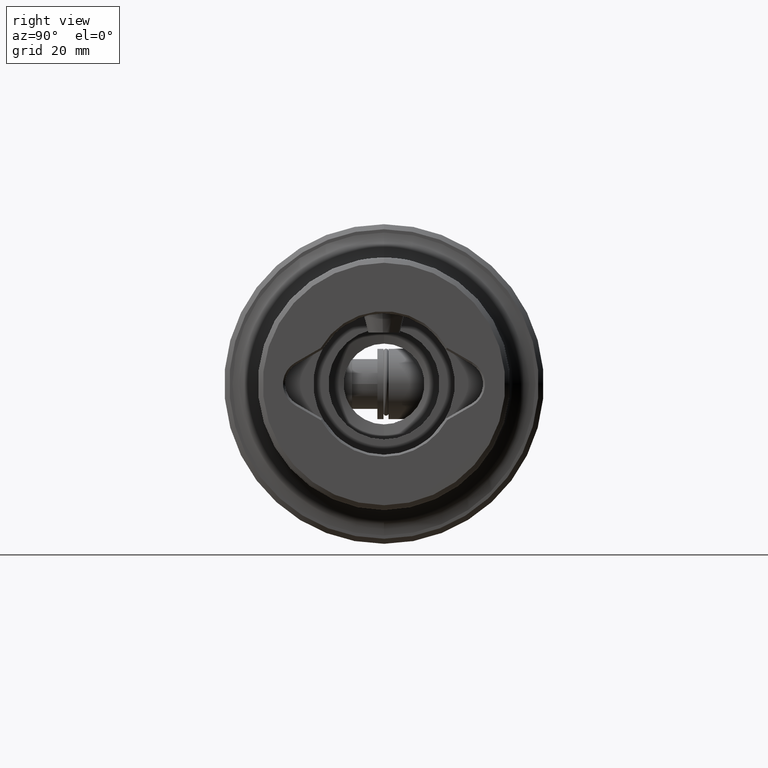
[diagram: clean part render]
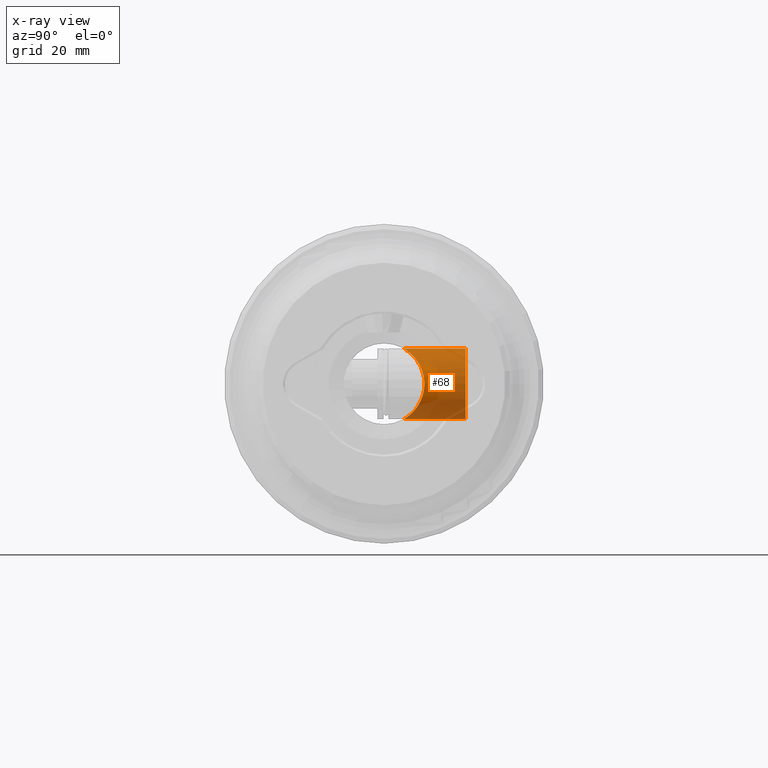
[diagram: x-ray — body ghosted, one internal face saturated and labeled with its STEP entity id]
A machine part, right view, then the same camera in x-ray: the body is ghosted and one INTERNAL B-rep face — a face not visible from any outside direction — is saturated and labeled: STEP entity #68.
In plain terms, the highlighted cylindrical surface (edge-blend (fillet) strip) has radius 7 mm, axis along (0, 1, 0).
Its self-contained STEP definition (entity closure, byte-faithful):
#68 = ADVANCED_FACE ( 'NONE', ( #2077 ), #2078, .F. ) ;
#106 = EDGE_CURVE ( 'NONE', #1848, #1788, #5243, .T. ) ;
#116 = EDGE_CURVE ( 'NONE', #1794, #1777, #365, .T. ) ;
#144 = EDGE_CURVE ( 'NONE', #1777, #1815, #403, .T. ) ;
#153 = EDGE_CURVE ( 'NONE', #1788, #1815, #2162, .T. ) ;
#156 = EDGE_CURVE ( 'NONE', #1848, #1794, #2163, .T. ) ;
#297 = AXIS2_PLACEMENT_3D ( 'NONE', #1117, #1118, #1119 ) ;
#365 = CIRCLE ( 'NONE', #366, 6.999999999999999100 ) ;
#366 = AXIS2_PLACEMENT_3D ( 'NONE', #2552, #2553, #2554 ) ;
#403 = CIRCLE ( 'NONE', #408, 6.999999999999999100 ) ;
#408 = AXIS2_PLACEMENT_3D ( 'NONE', #2657, #2658, #2659 ) ;
#419 = VECTOR ( 'NONE', #2769, 1000.000000000000000 ) ;
#422 = VECTOR ( 'NONE', #2826, 1000.000000000000000 ) ;
#513 = ORIENTED_EDGE ( 'NONE', *, *, #116, .T. ) ;
#514 = ORIENTED_EDGE ( 'NONE', *, *, #153, .F. ) ;
#515 = ORIENTED_EDGE ( 'NONE', *, *, #106, .F. ) ;
#516 = ORIENTED_EDGE ( 'NONE', *, *, #156, .T. ) ;
#518 = ORIENTED_EDGE ( 'NONE', *, *, #144, .T. ) ;
#1117 = CARTESIAN_POINT ( 'NONE',  ( 31.00000000000000000, -31.63500000000000500, 0.0000000000000000000 ) ) ;
#1118 = DIRECTION ( 'NONE',  ( -0.0000000000000000000, 1.000000000000000000, -0.0000000000000000000 ) ) ;
#1119 = DIRECTION ( 'NONE',  ( 0.0000000000000000000, 0.0000000000000000000, 1.000000000000000000 ) ) ;
#1777 = VERTEX_POINT ( 'NONE', #5006 ) ;
#1788 = VERTEX_POINT ( 'NONE', #5017 ) ;
#1794 = VERTEX_POINT ( 'NONE', #5023 ) ;
#1815 = VERTEX_POINT ( 'NONE', #5044 ) ;
#1848 = VERTEX_POINT ( 'NONE', #5077 ) ;
#1968 = EDGE_LOOP ( 'NONE', ( #514, #515, #516, #513, #518 ) ) ;
#2077 = FACE_OUTER_BOUND ( 'NONE', #1968, .T. ) ;
#2078 = CYLINDRICAL_SURFACE ( 'NONE', #297, 7.000000000000000000 ) ;
#2162 = LINE ( 'NONE', #2768, #419 ) ;
#2163 = LINE ( 'NONE', #2825, #422 ) ;
#2472 = CARTESIAN_POINT ( 'NONE',  ( 31.00000000000002800, 3.872983346207531600, 7.000000000000008000 ) ) ;
#2473 = CARTESIAN_POINT ( 'NONE',  ( 31.25150952951509000, 3.872983346207416600, 7.000000000000000900 ) ) ;
#2474 = CARTESIAN_POINT ( 'NONE',  ( 31.49764609907176900, 3.897609098806159400, 6.986512144310524700 ) ) ;
#2475 = CARTESIAN_POINT ( 'NONE',  ( 31.98074286846647900, 3.988177731900007600, 6.935210667922925500 ) ) ;
#2476 = CARTESIAN_POINT ( 'NONE',  ( 32.21939060143660800, 4.054646151562715200, 6.897013289270020700 ) ) ;
#2477 = CARTESIAN_POINT ( 'NONE',  ( 32.91208899918225900, 4.297563524002332400, 6.750313967821282000 ) ) ;
#2478 = CARTESIAN_POINT ( 'NONE',  ( 33.33618302869197700, 4.511018792922469000, 6.613199792375695600 ) ) ;
#2479 = CARTESIAN_POINT ( 'NONE',  ( 33.94127865411981300, 4.860453165376522800, 6.355857183588674400 ) ) ;
#2480 = CARTESIAN_POINT ( 'NONE',  ( 34.13793107031342800, 4.982573697057826000, 6.260956148259885400 ) ) ;
#2481 = CARTESIAN_POINT ( 'NONE',  ( 34.51608759526995800, 5.228986634347555700, 6.056674938847252500 ) ) ;
#2482 = CARTESIAN_POINT ( 'NONE',  ( 34.69843340959559400, 5.353767644453451900, 5.946977934507338600 ) ) ;
#2483 = CARTESIAN_POINT ( 'NONE',  ( 35.22816672748827900, 5.728443688976429200, 5.594857556674825500 ) ) ;
#2484 = CARTESIAN_POINT ( 'NONE',  ( 35.55855141161419700, 5.978557785983365800, 5.329700761963414900 ) ) ;
#2485 = CARTESIAN_POINT ( 'NONE',  ( 36.02350202804206700, 6.342417771066956300, 4.879646777212259100 ) ) ;
#2486 = CARTESIAN_POINT ( 'NONE',  ( 36.17397533346738200, 6.462424403061166200, 4.719993161877294300 ) ) ;
#2487 = CARTESIAN_POINT ( 'NONE',  ( 36.46003205259939500, 6.693643135794161500, 4.385932761008153800 ) ) ;
#2488 = CARTESIAN_POINT ( 'NONE',  ( 36.59568461713910600, 6.804890004860987500, 4.211636175206130900 ) ) ;
#2489 = CARTESIAN_POINT ( 'NONE',  ( 36.98016515217925400, 7.123323790367662100, 3.665499581207126900 ) ) ;
#2490 = CARTESIAN_POINT ( 'NONE',  ( 37.20765299464397200, 7.316088610786457600, 3.269170524971757500 ) ) ;
#2491 = CARTESIAN_POINT ( 'NONE',  ( 37.59008089059902600, 7.643256047235722100, 2.406920330758381500 ) ) ;
#2492 = CARTESIAN_POINT ( 'NONE',  ( 37.73937749234769300, 7.772813829932152500, 1.954234886555773300 ) ) ;
#2493 = CARTESIAN_POINT ( 'NONE',  ( 37.89387460141015400, 7.907266498770178800, 1.238569224581671100 ) ) ;
#2494 = CARTESIAN_POINT ( 'NONE',  ( 37.93372130449692700, 7.942060636750623500, 0.9921945586677709500 ) ) ;
#2495 = CARTESIAN_POINT ( 'NONE',  ( 37.98639055055731700, 7.988084185479389800, 0.5012865904527246100 ) ) ;
#2496 = CARTESIAN_POINT ( 'NONE',  ( 37.99967623635704000, 7.999716706867205900, 0.2553837469404206500 ) ) ;
#2497 = CARTESIAN_POINT ( 'NONE',  ( 38.00031210447501500, 8.000273091361835400, -0.2373156378398657600 ) ) ;
#2498 = CARTESIAN_POINT ( 'NONE',  ( 37.98766378670689600, 7.989198065058689100, -0.4841121308791075400 ) ) ;
#2499 = CARTESIAN_POINT ( 'NONE',  ( 37.93571255215222500, 7.943799414182387300, -0.9786220645567977900 ) ) ;
#2500 = CARTESIAN_POINT ( 'NONE',  ( 37.89657681984990500, 7.909623561254249100, -1.223333147197735800 ) ) ;
#2501 = CARTESIAN_POINT ( 'NONE',  ( 37.79487699569075000, 7.821107749879473700, -1.699694806297962700 ) ) ;
#2502 = CARTESIAN_POINT ( 'NONE',  ( 37.73217415248277700, 7.766645554248961900, -1.932705101340257900 ) ) ;
#2503 = CARTESIAN_POINT ( 'NONE',  ( 37.58410927264449000, 7.638658865278713100, -2.388937611990054100 ) ) ;
#2504 = CARTESIAN_POINT ( 'NONE',  ( 37.49817919220206600, 7.564649243936249200, -2.613215009182048700 ) ) ;
#2505 = CARTESIAN_POINT ( 'NONE',  ( 37.21333961301603900, 7.320924164744737600, -3.258114922168187500 ) ) ;
#2506 = CARTESIAN_POINT ( 'NONE',  ( 36.98704210979404600, 7.129069216778432900, -3.654907970464079900 ) ) ;
#2507 = CARTESIAN_POINT ( 'NONE',  ( 36.46904912723343300, 6.699959181163977800, -4.392325937463680500 ) ) ;
#2508 = CARTESIAN_POINT ( 'NONE',  ( 36.18332884090523300, 6.467625354216544100, -4.724130263467354300 ) ) ;
#2509 = CARTESIAN_POINT ( 'NONE',  ( 35.56719605291186100, 5.985195037363307200, -5.322125969331661800 ) ) ;
#2510 = CARTESIAN_POINT ( 'NONE',  ( 35.23608176211070700, 5.734155101385032300, -5.589289077951103300 ) ) ;
#2511 = CARTESIAN_POINT ( 'NONE',  ( 34.52085072694406900, 5.228052780230489000, -6.065323672382842100 ) ) ;
#2512 = CARTESIAN_POINT ( 'NONE',  ( 34.14489612991592800, 4.978281868758783100, -6.268943513910701700 ) ) ;
#2513 = CARTESIAN_POINT ( 'NONE',  ( 33.54334667312676300, 4.630533659732758000, -6.525250478903919800 ) ) ;
#2514 = CARTESIAN_POINT ( 'NONE',  ( 33.33639898924869300, 4.519184882075786700, -6.602452310275886300 ) ) ;
#2515 = CARTESIAN_POINT ( 'NONE',  ( 32.90538900262168900, 4.312166394369728400, -6.739482880393578200 ) ) ;
#2516 = CARTESIAN_POINT ( 'NONE',  ( 32.68058799732990800, 4.216402275134133700, -6.799325192123259100 ) ) ;
#2517 = CARTESIAN_POINT ( 'NONE',  ( 32.22090044364512800, 4.055153514021365700, -6.896709446665014700 ) ) ;
#2518 = CARTESIAN_POINT ( 'NONE',  ( 31.98474249579057000, 3.988991554300623600, -6.934747940482934900 ) ) ;
#2519 = CARTESIAN_POINT ( 'NONE',  ( 31.49578123250103400, 3.897195769751126800, -6.986748009664292900 ) ) ;
#2520 = CARTESIAN_POINT ( 'NONE',  ( 31.24663314475430200, 3.872983346207418800, -7.000000000000000000 ) ) ;
#2521 = CARTESIAN_POINT ( 'NONE',  ( 31.00000000000000000, 3.872983346207416100, -7.000000000000000000 ) ) ;
#2552 = CARTESIAN_POINT ( 'NONE',  ( 31.00000000000000000, 16.15000000000000200, 0.0000000000000000000 ) ) ;
#2553 = DIRECTION ( 'NONE',  ( -1.432360404464315800E-016, 1.000000000000000000, -0.0000000000000000000 ) ) ;
#2554 = DIRECTION ( 'NONE',  ( -1.000000000000000000, 0.0000000000000000000, 0.0000000000000000000 ) ) ;
#2657 = CARTESIAN_POINT ( 'NONE',  ( 31.00000000000000000, 16.15000000000000200, 0.0000000000000000000 ) ) ;
#2658 = DIRECTION ( 'NONE',  ( -1.432360404464315800E-016, 1.000000000000000000, -0.0000000000000000000 ) ) ;
#2659 = DIRECTION ( 'NONE',  ( -1.000000000000000000, 0.0000000000000000000, 0.0000000000000000000 ) ) ;
#2768 = CARTESIAN_POINT ( 'NONE',  ( 31.00000000000000000, -31.63500000000000500, -7.000000000000000000 ) ) ;
#2769 = DIRECTION ( 'NONE',  ( -0.0000000000000000000, 1.000000000000000000, -0.0000000000000000000 ) ) ;
#2825 = CARTESIAN_POINT ( 'NONE',  ( 31.00000000000000000, -31.63500000000000500, 7.000000000000000000 ) ) ;
#2826 = DIRECTION ( 'NONE',  ( -0.0000000000000000000, 1.000000000000000000, -0.0000000000000000000 ) ) ;
#5006 = CARTESIAN_POINT ( 'NONE',  ( 38.00000000000000000, 16.15000000000000200, 9.233973734653399900E-016 ) ) ;
#5017 = CARTESIAN_POINT ( 'NONE',  ( 31.00000000000000000, 3.872983346207416100, -7.000000000000000000 ) ) ;
#5023 = CARTESIAN_POINT ( 'NONE',  ( 31.00000000000000000, 16.15000000000000200, 6.999999999999999100 ) ) ;
#5044 = CARTESIAN_POINT ( 'NONE',  ( 31.00000000000000000, 16.15000000000000200, -6.999999999999999100 ) ) ;
#5077 = CARTESIAN_POINT ( 'NONE',  ( 31.00000000000002800, 3.872983346207531600, 7.000000000000008000 ) ) ;
#5243 = B_SPLINE_CURVE_WITH_KNOTS ( 'NONE', 3,
 ( #2472, #2473, #2474, #2475, #2476, #2477, #2478, #2479, #2480, #2481, #2482, #2483, #2484, #2485, #2486, #2487, #2488, #2489, #2490, #2491, #2492, #2493, #2494, #2495, #2496, #2497, #2498, #2499, #2500, #2501, #2502, #2503, #2504, #2505, #2506, #2507, #2508, #2509, #2510, #2511, #2512, #2513, #2514, #2515, #2516, #2517, #2518, #2519, #2520, #2521 ),
 .UNSPECIFIED., .F., .F.,
 ( 4, 2, 2, 2, 2, 2, 2, 2, 2, 2, 2, 2, 2, 2, 2, 2, 2, 2, 2, 2, 2, 2, 2, 2, 4 ),
 ( 4.590671271343872100E-017, 0.0007410764118145912300, 0.001482152823629136700, 0.002964305647258209200, 0.003705382059072745500, 0.004446458470887281800, 0.005928611294516368200, 0.006669687706330911000, 0.007410764118145455500, 0.008892916941774541000, 0.01037506976540362700, 0.01111614617721816800, 0.01185722258903271200, 0.01259829900084725500, 0.01333937541266179600, 0.01408045182447633900, 0.01482152823629088300, 0.01630368105991996500, 0.01778583388354905400, 0.01926798670717813600, 0.02075013953080722500, 0.02149121594262175900, 0.02223229235443628700, 0.02297336876625082100, 0.02371444517806535100 ),
 .UNSPECIFIED. ) ;